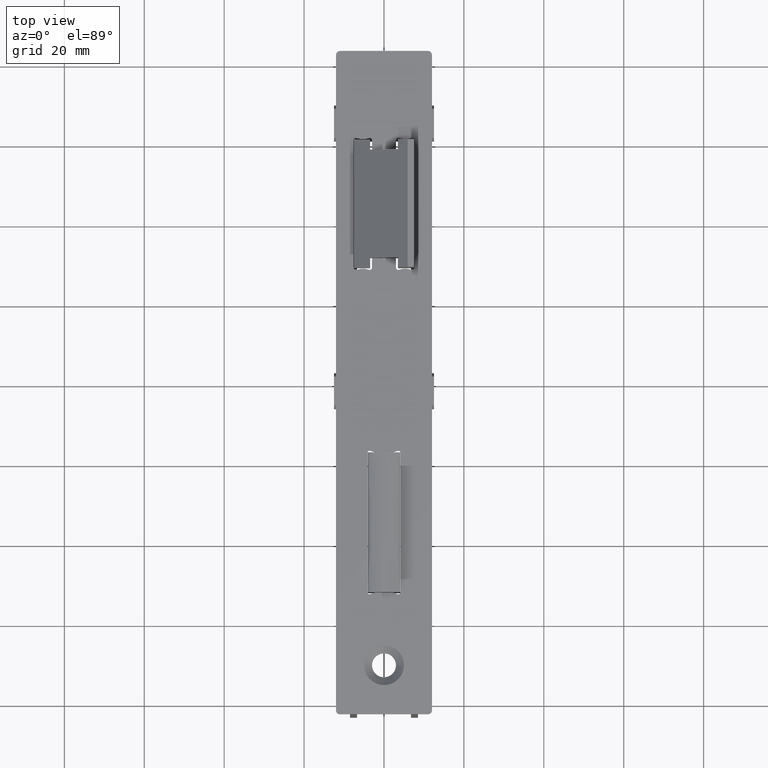
[diagram: clean part render]
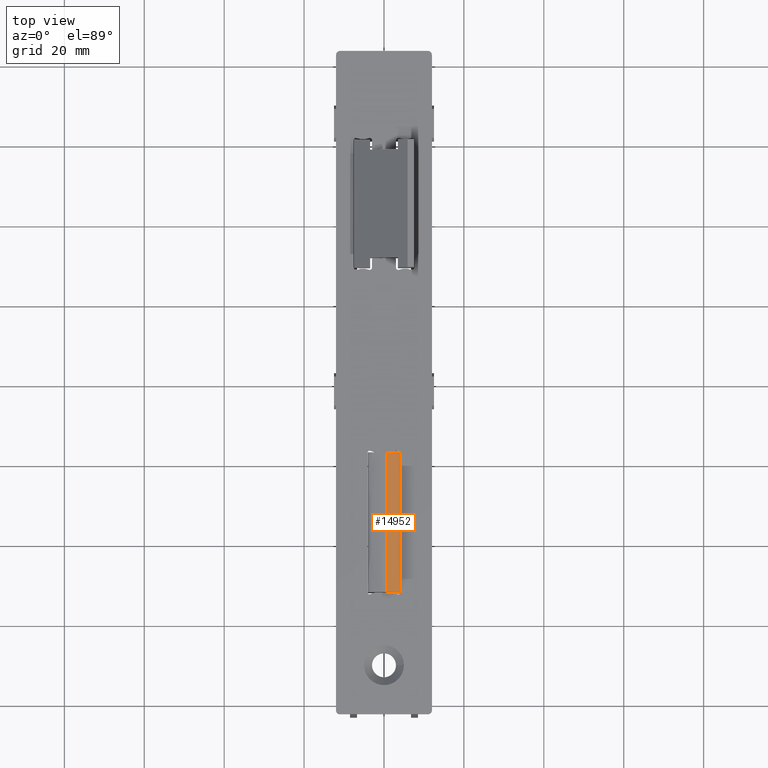
[diagram: same view with one face highlighted and labeled with its STEP entity id]
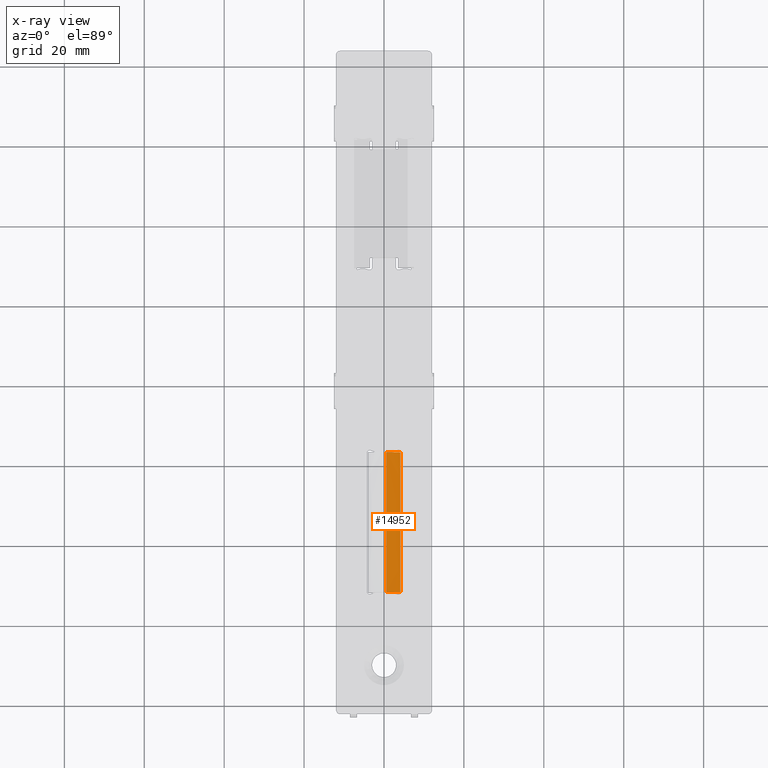
[diagram: x-ray of the same camera — body ghosted, the highlighted face saturated]
A machine part, top view. The second image highlights one B-rep face of the part: STEP entity #14952.
The next image is the same camera in x-ray: the body ghosted, the highlighted face saturated — about 0% of this face is hidden behind the body in this view.
In plain terms, the highlighted face is a freeform B-spline surface patch.
Its self-contained STEP definition (entity closure, byte-faithful):
#361 = CARTESIAN_POINT ( 'NONE',  ( 4.075000000000000178, 19.25000000000000355, 8.500000000000001776 ) ) ;
#368 = CARTESIAN_POINT ( 'NONE',  ( 0.5750000000000011768, 5.833333333333334814, 8.500000000000000000 ) ) ;
#611 = CARTESIAN_POINT ( 'NONE',  ( 3.391682287244239813, -17.50000000000000355, 8.093593951351662596 ) ) ;
#683 = CARTESIAN_POINT ( 'NONE',  ( 2.547329866368050588, -17.50000000000000000, 8.326167516546105318 ) ) ;
#742 = CARTESIAN_POINT ( 'NONE',  ( 3.967429577586556455, -17.50000000000000000, 7.747652645753492884 ) ) ;
#807 = CARTESIAN_POINT ( 'NONE',  ( 3.756506111252030156, -17.50000000000000000, 7.918860303529548617 ) ) ;
#1002 = CARTESIAN_POINT ( 'NONE',  ( 1.671794893746106903, -17.50000000000000000, 8.449783312065139995 ) ) ;
#1082 = CARTESIAN_POINT ( 'NONE',  ( 1.215215181720894710, -17.50000000000000355, 8.487461437076735393 ) ) ;
#1152 = CARTESIAN_POINT ( 'NONE',  ( 2.323077169840475520, -17.50000000000000000, 8.367781914649931707 ) ) ;
#1301 = CARTESIAN_POINT ( 'NONE',  ( 1.389080209895154683, 17.50000000000000000, 8.472698653924762624 ) ) ;
#1376 = CARTESIAN_POINT ( 'NONE',  ( 4.074999999999999289, 17.50000000000000000, 7.574574139107788540 ) ) ;
#1392 = EDGE_CURVE ( 'NONE', #7793, #1967, #4254, .T. ) ;
#1487 = CARTESIAN_POINT ( 'NONE',  ( 3.983286058347930592, 17.50000000000000000, 7.727439539106986999 ) ) ;
#1779 = B_SPLINE_CURVE_WITH_KNOTS ( 'NONE', 3,
 ( #7089, #13482, #16630, #8514, #16427, #13216, #7021, #18103, #742, #13336, #14780, #7199, #8784, #5347, #18236, #807, #3959, #11745, #16554, #16354, #2325, #10048, #611, #19681, #11798, #19541, #2394, #683, #11674, #13407, #11947, #1152, #13747, #10598, #1002, #8900, #2710, #16891, #1082, #18297, #5817 ),
 .UNSPECIFIED., .F., .F.,
 ( 4, 1, 1, 1, 2, 2, 1, 1, 1, 2, 2, 1, 1, 1, 1, 2, 2, 1, 1, 1, 1, 2, 2, 1, 1, 1, 2, 2, 4 ),
 ( 0.000000000000000000, 0.03124999999999313050, 0.04687499999998969574, 0.05468749999998781530, 0.05859374999998712835, 0.06249999999998644140, 0.09374999999998434586, 0.1093749999999832911, 0.1171874999999822642, 0.1210937499999821115, 0.1249999999999819589, 0.1874999999999818479, 0.2187499999999819311, 0.2343749999999817368, 0.2421874999999816258, 0.2460937499999815703, 0.2499999999999815148, 0.3749999999999873990, 0.4374999999999904521, 0.4687499999999920619, 0.4843749999999927280, 0.4921874999999928946, 0.4999999999999931166, 0.6249999999999946709, 0.6874999999999954481, 0.7187499999999956701, 0.7343749999999957812, 0.7499999999999958922, 1.000000000000000000 ),
 .UNSPECIFIED. ) ;
#1967 = VERTEX_POINT ( 'NONE', #7131 ) ;
#1996 = CARTESIAN_POINT ( 'NONE',  ( 0.5749999999999992895, 19.25000000000000355, 8.500000000000000000 ) ) ;
#2036 = FACE_OUTER_BOUND ( 'NONE', #20431, .T. ) ;
#2325 = CARTESIAN_POINT ( 'NONE',  ( 3.409146654310746705, -17.50000000000000355, 8.086769627153621798 ) ) ;
#2394 = CARTESIAN_POINT ( 'NONE',  ( 2.623653966923917835, -17.50000000000000000, 8.311073779542246243 ) ) ;
#2710 = CARTESIAN_POINT ( 'NONE',  ( 1.567852314196372054, -17.50000000000000355, 8.458940947192429505 ) ) ;
#2887 = CARTESIAN_POINT ( 'NONE',  ( 3.355728408766867954, 17.50000000000000000, 8.107292149309504481 ) ) ;
#2941 = CARTESIAN_POINT ( 'NONE',  ( 0.9761662841005832592, 17.50000000000000355, 8.495302994223616011 ) ) ;
#3001 = CARTESIAN_POINT ( 'NONE',  ( 1.486541734633320067, 17.49999999999999645, 8.465506363829671699 ) ) ;
#3083 = CARTESIAN_POINT ( 'NONE',  ( 3.150570645036729456, 17.50000000000000355, 8.178399283415108911 ) ) ;
#3152 = CARTESIAN_POINT ( 'NONE',  ( 3.706960620069241763, 17.50000000000000000, 7.947244197979206781 ) ) ;
#3431 = CARTESIAN_POINT ( 'NONE',  ( 0.5749999999999990674, 17.50000000000000000, 8.500000000000000000 ) ) ;
#3492 = CARTESIAN_POINT ( 'NONE',  ( 4.075000000000004619, -19.25000000000000355, 8.500000000000001776 ) ) ;
#3707 = CARTESIAN_POINT ( 'NONE',  ( 4.075000000000004619, -6.416666666666667851, 8.500000000000001776 ) ) ;
#3788 = CARTESIAN_POINT ( 'NONE',  ( 0.5749999999999990674, 17.50000000000000000, 8.500000000000000000 ) ) ;
#3959 = CARTESIAN_POINT ( 'NONE',  ( 3.662337398988512849, -17.50000000000000000, 7.974282811732870790 ) ) ;
#4254 = B_SPLINE_CURVE_WITH_KNOTS ( 'NONE', 3,
 ( #5942, #15572, #4486, #7720 ),
 .UNSPECIFIED., .F., .F.,
 ( 4, 4 ),
 ( 0.000000000000000000, 1.000000000000000000 ),
 .UNSPECIFIED. ) ;
#4296 = VERTEX_POINT ( 'NONE', #10976 ) ;
#4486 = CARTESIAN_POINT ( 'NONE',  ( 4.075000000000002842, -5.833333333333334814, 7.500000000000000888 ) ) ;
#5087 = CARTESIAN_POINT ( 'NONE',  ( 4.075000000000001066, 6.416666666666667851, 7.500000000000000888 ) ) ;
#5155 = CARTESIAN_POINT ( 'NONE',  ( 0.5750000000000049516, -6.416666666666667851, 8.500000000000000000 ) ) ;
#5347 = CARTESIAN_POINT ( 'NONE',  ( 3.820786339552892930, -17.49999999999999645, 7.874163397565419942 ) ) ;
#5817 = CARTESIAN_POINT ( 'NONE',  ( 0.5750000000000051736, -17.50000000000000000, 8.500000000000000000 ) ) ;
#5942 = CARTESIAN_POINT ( 'NONE',  ( 4.074999999999999289, 17.50000000000000000, 7.500000000000000888 ) ) ;
#5987 = CARTESIAN_POINT ( 'NONE',  ( 3.898796063624234254, 17.49999999999999645, 7.815508467295074979 ) ) ;
#6121 = CARTESIAN_POINT ( 'NONE',  ( 0.7363500402859249894, 17.50000000000000355, 8.500000000000003553 ) ) ;
#6185 = CARTESIAN_POINT ( 'NONE',  ( 2.339196060527724885, 17.50000000000000355, 8.363837099196990366 ) ) ;
#6261 = CARTESIAN_POINT ( 'NONE',  ( 3.786444490018546105, 17.50000000000000355, 7.897660237105910142 ) ) ;
#6283 = EDGE_CURVE ( 'NONE', #4296, #8777, #8094, .T. ) ;
#6552 = CARTESIAN_POINT ( 'NONE',  ( 0.5750000000000030642, -5.833333333333334814, 8.500000000000000000 ) ) ;
#6673 = CARTESIAN_POINT ( 'NONE',  ( 4.075000000000000178, 6.416666666666667851, 8.500000000000001776 ) ) ;
#6773 = EDGE_CURVE ( 'NONE', #1967, #4296, #1779, .T. ) ;
#6821 = CARTESIAN_POINT ( 'NONE',  ( 0.5749999999999992895, 6.416666666666667851, 8.500000000000000000 ) ) ;
#7021 = CARTESIAN_POINT ( 'NONE',  ( 3.996049370218768715, -17.49999999999999645, 7.711237098521229072 ) ) ;
#7089 = CARTESIAN_POINT ( 'NONE',  ( 4.075000000000004619, -17.50000000000000000, 7.500000000000000888 ) ) ;
#7131 = CARTESIAN_POINT ( 'NONE',  ( 4.075000000000004619, -17.50000000000000000, 7.500000000000000888 ) ) ;
#7159 = CARTESIAN_POINT ( 'NONE',  ( 4.074999999999999289, 17.50000000000000000, 7.500000000000000888 ) ) ;
#7199 = CARTESIAN_POINT ( 'NONE',  ( 3.843482748339689614, -17.50000000000000000, 7.857771422098243086 ) ) ;
#7557 = CARTESIAN_POINT ( 'NONE',  ( 3.968848757449060738, 17.50000000000000355, 7.744569106611950637 ) ) ;
#7687 = CARTESIAN_POINT ( 'NONE',  ( 1.936718069191653013, 17.50000000000000000, 8.423605389401865651 ) ) ;
#7720 = CARTESIAN_POINT ( 'NONE',  ( 4.075000000000004619, -17.50000000000000000, 7.500000000000000888 ) ) ;
#7774 = CARTESIAN_POINT ( 'NONE',  ( 1.693067953909010548, 17.50000000000000000, 8.448917396881778785 ) ) ;
#7793 = VERTEX_POINT ( 'NONE', #7159 ) ;
#8094 = B_SPLINE_CURVE_WITH_KNOTS ( 'NONE', 3,
 ( #15916, #6552, #368, #3431 ),
 .UNSPECIFIED., .F., .F.,
 ( 4, 4 ),
 ( 0.000000000000000000, 1.000000000000000000 ),
 .UNSPECIFIED. ) ;
#8501 = ORIENTED_EDGE ( 'NONE', *, *, #8868, .F. ) ;
#8514 = CARTESIAN_POINT ( 'NONE',  ( 4.032892997450010952, -17.50000000000000000, 7.656571673233321995 ) ) ;
#8777 = VERTEX_POINT ( 'NONE', #3788 ) ;
#8784 = CARTESIAN_POINT ( 'NONE',  ( 3.829940156251732564, -17.49999999999999645, 7.867612231070719275 ) ) ;
#8868 = EDGE_CURVE ( 'NONE', #8777, #7793, #18570, .T. ) ;
#8900 = CARTESIAN_POINT ( 'NONE',  ( 1.609530477745330757, -17.50000000000000000, 8.455340661716698847 ) ) ;
#9131 = CARTESIAN_POINT ( 'NONE',  ( 4.046268830469615274, 17.50000000000000355, 7.648094324018123835 ) ) ;
#9278 = CARTESIAN_POINT ( 'NONE',  ( 3.367723810807808249, 17.50000000000000000, 8.102763609029533853 ) ) ;
#9348 = CARTESIAN_POINT ( 'NONE',  ( 3.797160470117079800, 17.50000000000000000, 7.890469262168329223 ) ) ;
#9415 = CARTESIAN_POINT ( 'NONE',  ( 2.895000940823674984, 17.50000000000000000, 8.253129667991700558 ) ) ;
#10048 = CARTESIAN_POINT ( 'NONE',  ( 3.398481451529184572, -17.50000000000000355, 8.090952801103176384 ) ) ;
#10598 = CARTESIAN_POINT ( 'NONE',  ( 1.815308725822609048, -17.50000000000000000, 8.435717712812490277 ) ) ;
#10894 = CARTESIAN_POINT ( 'NONE',  ( 2.431994777129106833, 17.49999999999999645, 8.347646205874278635 ) ) ;
#10967 = CARTESIAN_POINT ( 'NONE',  ( 3.977583848645135589, 17.50000000000000355, 7.734299125358685245 ) ) ;
#10976 = CARTESIAN_POINT ( 'NONE',  ( 0.5750000000000051736, -17.50000000000000000, 8.500000000000000000 ) ) ;
#11036 = CARTESIAN_POINT ( 'NONE',  ( 3.378202023060477899, 17.50000000000000000, 8.098782905347011507 ) ) ;
#11674 = CARTESIAN_POINT ( 'NONE',  ( 2.514155945119104452, -17.49999999999999645, 8.332496698027942017 ) ) ;
#11745 = CARTESIAN_POINT ( 'NONE',  ( 3.531891636321089045, -17.50000000000000000, 8.035762322405409108 ) ) ;
#11798 = CARTESIAN_POINT ( 'NONE',  ( 3.051310530892175077, -17.50000000000000000, 8.211393244891057819 ) ) ;
#11947 = CARTESIAN_POINT ( 'NONE',  ( 2.478718872497208014, -17.50000000000000355, 8.339142379151832429 ) ) ;
#12313 = CARTESIAN_POINT ( 'NONE',  ( 3.804243613186039319, 17.50000000000000355, 7.885665035833206105 ) ) ;
#12457 = CARTESIAN_POINT ( 'NONE',  ( 0.5749999999999990674, 17.50000000000000000, 8.500000000000000000 ) ) ;
#12524 = CARTESIAN_POINT ( 'NONE',  ( 2.404283249883027107, 17.50000000000000355, 8.352586361069926468 ) ) ;
#12876 = CARTESIAN_POINT ( 'NONE',  ( 4.074999999999999289, 19.25000000000000355, 7.500000000000000888 ) ) ;
#13216 = CARTESIAN_POINT ( 'NONE',  ( 4.002768572753341303, -17.50000000000000000, 7.702141859679402458 ) ) ;
#13336 = CARTESIAN_POINT ( 'NONE',  ( 3.929062377900404357, -17.49999999999999645, 7.788196856999711315 ) ) ;
#13407 = CARTESIAN_POINT ( 'NONE',  ( 2.491936977077741311, -17.49999999999999645, 8.336685138360644842 ) ) ;
#13482 = CARTESIAN_POINT ( 'NONE',  ( 4.075000000000003730, -17.50000000000000000, 7.537108637201688666 ) ) ;
#13747 = CARTESIAN_POINT ( 'NONE',  ( 2.095257168941051962, -17.50000000000000000, 8.403192714044429579 ) ) ;
#13813 = ORIENTED_EDGE ( 'NONE', *, *, #6773, .F. ) ;
#13981 = CARTESIAN_POINT ( 'NONE',  ( 3.327475341231493466, 17.50000000000000000, 8.117777056901795518 ) ) ;
#14042 = CARTESIAN_POINT ( 'NONE',  ( 2.207313845359371474, 17.50000000000000000, 8.385233412800047859 ) ) ;
#14107 = CARTESIAN_POINT ( 'NONE',  ( 4.074999999999999289, 17.50000000000000000, 7.500000000000000888 ) ) ;
#14144 = ORIENTED_EDGE ( 'NONE', *, *, #6283, .F. ) ;
#14188 = CARTESIAN_POINT ( 'NONE',  ( 3.848586460921741281, 17.50000000000000355, 7.854958949868605877 ) ) ;
#14594 = CARTESIAN_POINT ( 'NONE',  ( 4.075000000000004619, -19.25000000000000355, 7.500000000000000888 ) ) ;
#14780 = CARTESIAN_POINT ( 'NONE',  ( 3.873765199156116168, -17.50000000000000355, 7.834711119882766361 ) ) ;
#14952 = ADVANCED_FACE ( 'NONE', ( #2036 ), #17964, .T. ) ;
#15420 = CARTESIAN_POINT ( 'NONE',  ( 1.504474928163300307, 17.49999999999999645, 8.464112273402314202 ) ) ;
#15572 = CARTESIAN_POINT ( 'NONE',  ( 4.075000000000001066, 5.833333333333334814, 7.500000000000000888 ) ) ;
#15916 = CARTESIAN_POINT ( 'NONE',  ( 0.5750000000000051736, -17.50000000000000000, 8.500000000000000000 ) ) ;
#16165 = CARTESIAN_POINT ( 'NONE',  ( 0.5750000000000049516, -19.25000000000000355, 8.500000000000000000 ) ) ;
#16354 = CARTESIAN_POINT ( 'NONE',  ( 3.425052573371361930, -17.50000000000000000, 8.080480669433603325 ) ) ;
#16427 = CARTESIAN_POINT ( 'NONE',  ( 4.012511416428474753, -17.50000000000000355, 7.688489905393728563 ) ) ;
#16554 = CARTESIAN_POINT ( 'NONE',  ( 3.461523188730714740, -17.50000000000000000, 8.065707057183848505 ) ) ;
#16630 = CARTESIAN_POINT ( 'NONE',  ( 4.064249275944687767, -17.50000000000000711, 7.592480520270473043 ) ) ;
#16891 = CARTESIAN_POINT ( 'NONE',  ( 1.545340455049992734, -17.50000000000000000, 8.460816990864799436 ) ) ;
#16971 = CARTESIAN_POINT ( 'NONE',  ( 3.947194441498357076, 17.50000000000000000, 7.768396609332940628 ) ) ;
#17034 = CARTESIAN_POINT ( 'NONE',  ( 2.450428465853693893, 17.50000000000000355, 8.344326455680731058 ) ) ;
#17117 = CARTESIAN_POINT ( 'NONE',  ( 1.252086472809448736, 17.50000000000000355, 8.481603394042494415 ) ) ;
#17247 = CARTESIAN_POINT ( 'NONE',  ( 3.269914021734670051, 17.50000000000000000, 8.138420126509167574 ) ) ;
#17964 =( BOUNDED_SURFACE ( )  B_SPLINE_SURFACE ( 2, 3, ( 
 ( #12876, #5087, #19372, #14594 ),
 ( #361, #6673, #3707, #3492 ),
 ( #1996, #6821, #5155, #16165 ) ),
 .UNSPECIFIED., .F., .F., .F. ) 
 B_SPLINE_SURFACE_WITH_KNOTS ( ( 3, 3 ),
 ( 4, 4 ),
 ( 0.000000000000000000, 1.000000000000000000 ),
 ( -0.01925000000000000322, 0.01925000000000000322 ),
 .UNSPECIFIED. ) 
 GEOMETRIC_REPRESENTATION_ITEM ( )  RATIONAL_B_SPLINE_SURFACE ( (
 ( 1.000000000000000000, 1.000000000000000000, 1.000000000000000000, 1.000000000000000000),
 ( 0.7071067811865475727, 0.7071067811865475727, 0.7071067811865475727, 0.7071067811865475727),
 ( 1.000000000000000000, 1.000000000000000000, 1.000000000000000000, 1.000000000000000000) ) ) 
 REPRESENTATION_ITEM ( '' )  SURFACE ( )  );
#18103 = CARTESIAN_POINT ( 'NONE',  ( 3.991689786303831422, -17.49999999999999645, 7.716907065788454645 ) ) ;
#18236 = CARTESIAN_POINT ( 'NONE',  ( 3.814878032308853140, -17.49999999999999645, 7.878315517410940494 ) ) ;
#18297 = CARTESIAN_POINT ( 'NONE',  ( 0.8982414079459769551, -17.50000000000000355, 8.500000000000001776 ) ) ;
#18570 = B_SPLINE_CURVE_WITH_KNOTS ( 'NONE', 3,
 ( #12457, #6121, #2941, #17117, #1301, #20247, #3001, #15420, #7774, #7687, #14042, #6185, #12524, #10894, #17034, #18727, #18672, #9415, #3083, #17247, #13981, #2887, #9278, #18796, #11036, #18875, #20321, #3152, #20181, #6261, #9348, #12313, #20396, #14188, #5987, #16971, #7557, #10967, #1487, #18608, #9131, #1376, #14107 ),
 .UNSPECIFIED., .F., .F.,
 ( 4, 1, 1, 1, 2, 2, 1, 1, 1, 1, 2, 2, 1, 1, 1, 1, 1, 2, 2, 1, 1, 1, 1, 2, 2, 1, 1, 1, 2, 2, 4 ),
 ( 0.000000000000000000, 0.1249999999999968914, 0.1874999999999952538, 0.2187499999999944489, 0.2343749999999940048, 0.2499999999999935607, 0.3749999999999903966, 0.4374999999999888423, 0.4687499999999880651, 0.4843749999999879541, 0.4921874999999880651, 0.4999999999999882316, 0.6249999999999896749, 0.6874999999999900080, 0.7187499999999902300, 0.7343749999999905631, 0.7421874999999911182, 0.7460937499999915623, 0.7499999999999920064, 0.8124999999999988898, 0.8437500000000023315, 0.8593750000000039968, 0.8671875000000045519, 0.8710937500000042188, 0.8750000000000038858, 0.9062500000000042188, 0.9218750000000041078, 0.9296875000000038858, 0.9335937500000037748, 0.9375000000000036637, 1.000000000000000000 ),
 .UNSPECIFIED. ) ;
#18608 = CARTESIAN_POINT ( 'NONE',  ( 3.985215095217547798, 17.49999999999999645, 7.725089694150566011 ) ) ;
#18672 = CARTESIAN_POINT ( 'NONE',  ( 2.646998992954479046, 17.49999999999999645, 8.308222118939733392 ) ) ;
#18727 = CARTESIAN_POINT ( 'NONE',  ( 2.457663795885610014, 17.50000000000000000, 8.343013805170800268 ) ) ;
#18796 = CARTESIAN_POINT ( 'NONE',  ( 3.375695622063051626, 17.50000000000000000, 8.099736802519624135 ) ) ;
#18801 = ORIENTED_EDGE ( 'NONE', *, *, #1392, .F. ) ;
#18875 = CARTESIAN_POINT ( 'NONE',  ( 3.470473349756098003, 17.49999999999999645, 8.063345065369553311 ) ) ;
#19372 = CARTESIAN_POINT ( 'NONE',  ( 4.075000000000002842, -6.416666666666667851, 7.500000000000000888 ) ) ;
#19541 = CARTESIAN_POINT ( 'NONE',  ( 2.771975305268945089, -17.50000000000000000, 8.279583718016228389 ) ) ;
#19681 = CARTESIAN_POINT ( 'NONE',  ( 3.261070808168958113, -17.50000000000000355, 8.144012239229811101 ) ) ;
#20181 = CARTESIAN_POINT ( 'NONE',  ( 3.760801677989648706, 17.50000000000000355, 7.914331626671256892 ) ) ;
#20247 = CARTESIAN_POINT ( 'NONE',  ( 1.447584734945732254, 17.49999999999999645, 8.468441992439913690 ) ) ;
#20321 = CARTESIAN_POINT ( 'NONE',  ( 3.589056768777969086, 17.50000000000000000, 8.011348509304138332 ) ) ;
#20396 = CARTESIAN_POINT ( 'NONE',  ( 3.806566619489676118, 17.50000000000000000, 7.884081256816031669 ) ) ;
#20431 = EDGE_LOOP ( 'NONE', ( #13813, #18801, #8501, #14144 ) ) ;